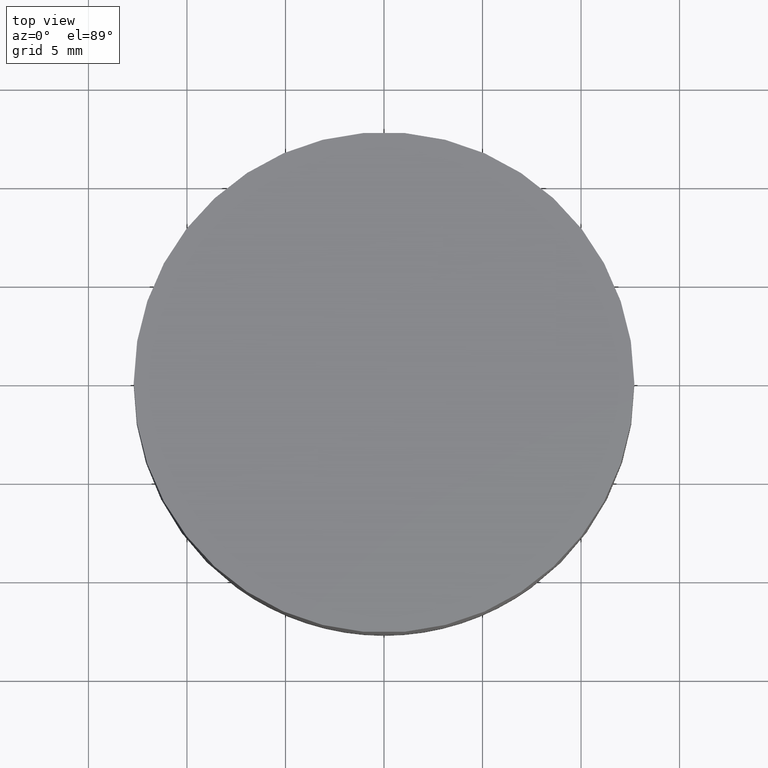
[diagram: clean part render]
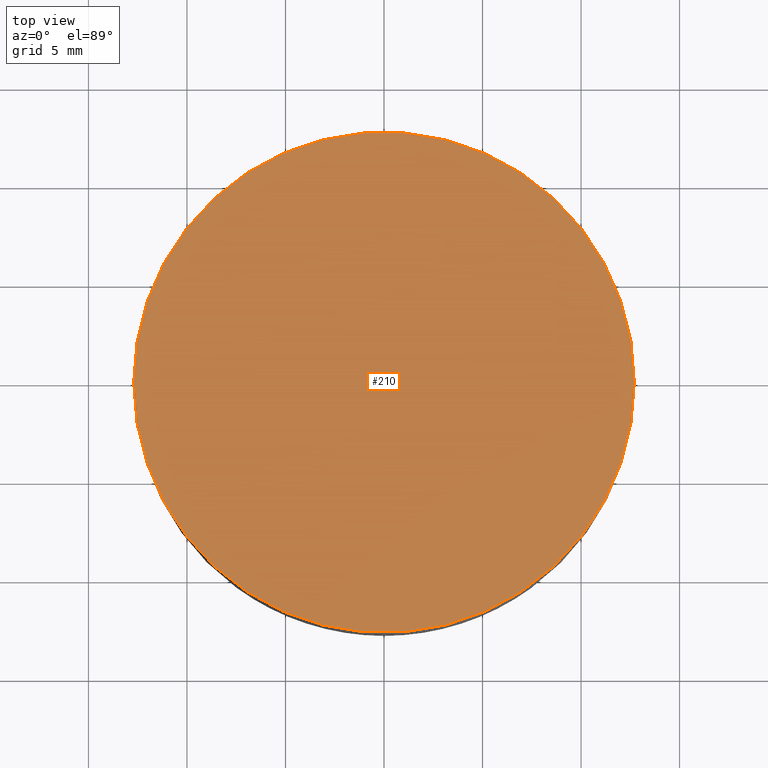
[diagram: same view with one face highlighted and labeled with its STEP entity id]
A machine part, top view. The second image highlights one B-rep face of the part: STEP entity #210.
In plain terms, the highlighted planar face has unit normal (0, 0, 1).
Its self-contained STEP definition (entity closure, byte-faithful):
#1 = CARTESIAN_POINT ( 'NONE',  ( 12.69999999999999900, 2.442490654175340100E-015, 1.599999999999999900 ) ) ;
#20 = DIRECTION ( 'NONE',  ( 0.0000000000000000000, 0.0000000000000000000, 1.000000000000000000 ) ) ;
#32 = DIRECTION ( 'NONE',  ( 1.000000000000000000, 0.0000000000000000000, 0.0000000000000000000 ) ) ;
#33 = DIRECTION ( 'NONE',  ( -0.0000000000000000000, -0.0000000000000000000, -1.000000000000000000 ) ) ;
#34 = VERTEX_POINT ( 'NONE', #81 ) ;
#40 = CARTESIAN_POINT ( 'NONE',  ( 4.996003610813200500E-016, 2.442490654175340100E-015, 1.599999999999999900 ) ) ;
#60 = ORIENTED_EDGE ( 'NONE', *, *, #196, .F. ) ;
#68 = PLANE ( 'NONE',  #152 ) ;
#76 = AXIS2_PLACEMENT_3D ( 'NONE', #40, #169, #220 ) ;
#78 = VERTEX_POINT ( 'NONE', #1 ) ;
#81 = CARTESIAN_POINT ( 'NONE',  ( -12.69999999999999900, 3.997792089092478900E-015, 1.599999999999999900 ) ) ;
#86 = CARTESIAN_POINT ( 'NONE',  ( 4.996003610813200500E-016, 2.442490654175340100E-015, 1.599999999999999900 ) ) ;
#102 = EDGE_LOOP ( 'NONE', ( #137, #60 ) ) ;
#112 = CARTESIAN_POINT ( 'NONE',  ( 0.0000000000000000000, 26.11199999999999800, 1.600000000000000100 ) ) ;
#137 = ORIENTED_EDGE ( 'NONE', *, *, #212, .F. ) ;
#152 = AXIS2_PLACEMENT_3D ( 'NONE', #112, #20, #164 ) ;
#164 = DIRECTION ( 'NONE',  ( 1.000000000000000000, 0.0000000000000000000, -0.0000000000000000000 ) ) ;
#167 = CIRCLE ( 'NONE', #76, 12.69999999999999900 ) ;
#169 = DIRECTION ( 'NONE',  ( -0.0000000000000000000, -0.0000000000000000000, -1.000000000000000000 ) ) ;
#191 = CIRCLE ( 'NONE', #201, 12.69999999999999900 ) ;
#195 = FACE_OUTER_BOUND ( 'NONE', #102, .T. ) ;
#196 = EDGE_CURVE ( 'NONE', #34, #78, #191, .T. ) ;
#201 = AXIS2_PLACEMENT_3D ( 'NONE', #86, #33, #32 ) ;
#210 = ADVANCED_FACE ( 'NONE', ( #195 ), #68, .T. ) ;
#212 = EDGE_CURVE ( 'NONE', #78, #34, #167, .T. ) ;
#220 = DIRECTION ( 'NONE',  ( 1.000000000000000000, 0.0000000000000000000, 0.0000000000000000000 ) ) ;